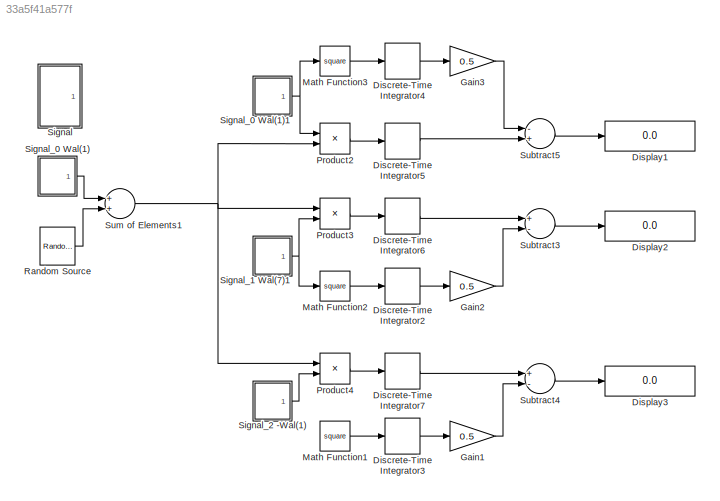
MODEL slx_33a5f41a577f
KIND model
CONFIG AbsTol = auto
CONFIG FixedStep = auto
CONFIG MaxStep = auto
CONFIG MinStep = auto
CONFIG RelTol = 1e-3
CONFIG SampleTimeConstraint = Unconstrained
CONFIG Solver = VariableStepAuto
CONFIG SolverMode = Auto
CONFIG SolverName = VariableStepAuto
CONFIG StartTime = 0.0
CONFIG StopTime = 10E-2
BLOCK [DiscreteIntegrator] Discrete-Time Integrator2
  ICPrevOutput = DiscIntNeverNeededParam
  ICPrevScaledInput = DiscIntNeverNeededParam
  InitialConditionSetting = State (most efficient)
  IntegratorMethod = Accumulation: Forward Euler
  Ports = [1, 1]
  SampleTime = T/N
BLOCK [DiscreteIntegrator] Discrete-Time Integrator3
  ICPrevOutput = DiscIntNeverNeededParam
  ICPrevScaledInput = DiscIntNeverNeededParam
  InitialConditionSetting = State (most efficient)
  IntegratorMethod = Accumulation: Forward Euler
  Ports = [1, 1]
  SampleTime = T/N
BLOCK [DiscreteIntegrator] Discrete-Time Integrator4
  ICPrevOutput = DiscIntNeverNeededParam
  ICPrevScaledInput = DiscIntNeverNeededParam
  InitialConditionSetting = State (most efficient)
  IntegratorMethod = Accumulation: Forward Euler
  Ports = [1, 1]
  SampleTime = T/N
BLOCK [DiscreteIntegrator] Discrete-Time Integrator5
  ICPrevOutput = DiscIntNeverNeededParam
  ICPrevScaledInput = DiscIntNeverNeededParam
  InitialConditionSetting = State (most efficient)
  IntegratorMethod = Accumulation: Forward Euler
  Ports = [1, 1]
  SampleTime = T/N
BLOCK [DiscreteIntegrator] Discrete-Time Integrator6
  ICPrevOutput = DiscIntNeverNeededParam
  ICPrevScaledInput = DiscIntNeverNeededParam
  InitialConditionSetting = State (most efficient)
  IntegratorMethod = Accumulation: Forward Euler
  Ports = [1, 1]
  SampleTime = T/N
BLOCK [DiscreteIntegrator] Discrete-Time Integrator7
  ICPrevOutput = DiscIntNeverNeededParam
  ICPrevScaledInput = DiscIntNeverNeededParam
  InitialConditionSetting = State (most efficient)
  IntegratorMethod = Accumulation: Forward Euler
  Ports = [1, 1]
  SampleTime = T/N
BLOCK [Display] Display1
  Decimation = 1
  Ports = [1]
BLOCK [Display] Display2
  Decimation = 1
  Ports = [1]
BLOCK [Display] Display3
  Decimation = 1
  Ports = [1]
BLOCK [Gain] Gain1
  Gain = 0.5
  OutDataTypeStr = Inherit: Inherit via internal rule
  ParamDataTypeStr = Inherit: Inherit via internal rule
  SaturateOnIntegerOverflow = off
BLOCK [Gain] Gain2
  Gain = 0.5
  OutDataTypeStr = Inherit: Inherit via internal rule
  ParamDataTypeStr = Inherit: Inherit via internal rule
  SaturateOnIntegerOverflow = off
BLOCK [Gain] Gain3
  Gain = 0.5
  OutDataTypeStr = Inherit: Inherit via internal rule
  ParamDataTypeStr = Inherit: Inherit via internal rule
  SaturateOnIntegerOverflow = off
BLOCK [Math] Math Function1
  Operator = square
  Ports = [1, 1]
BLOCK [Math] Math Function2
  Operator = square
  Ports = [1, 1]
BLOCK [Math] Math Function3
  Operator = square
  Ports = [1, 1]
BLOCK [Product] Product2
  InputSameDT = off
  OutDataTypeStr = Inherit: Inherit via internal rule
  Ports = [2, 1]
  RndMeth = Floor
  SaturateOnIntegerOverflow = off
BLOCK [Product] Product3
  InputSameDT = off
  OutDataTypeStr = Inherit: Inherit via internal rule
  Ports = [2, 1]
  RndMeth = Floor
  SaturateOnIntegerOverflow = off
BLOCK [Product] Product4
  InputSameDT = off
  OutDataTypeStr = Inherit: Inherit via internal rule
  Ports = [2, 1]
  RndMeth = Floor
  SaturateOnIntegerOverflow = off
BLOCK [Reference] Random Source  REF=dspsrcs4/Random
Source
  Ports = [0, 1]
  SourceBlock = dspsrcs4/Random\nSource
  SourceType = Random Source
  UserDataPersistent = on
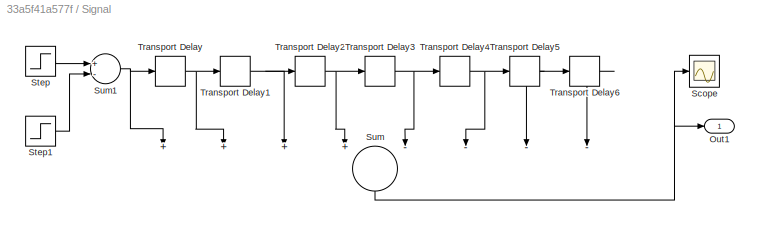
BLOCK [SubSystem] Signal 
  Ports = [0, 1]
  RequestExecContextInheritance = off
  Variant = off
BLOCK [Outport] Signal /Out1
  IconDisplay = Port number
BLOCK [Scope] Signal /Scope
  Ports = [1]
  ScopeSpecificationString = Simulink.scopes.TimeScopeBlockCfg('CurrentConfiguration', extmgr.ConfigurationSet(extmgr.Configuration('Core','General UI',true),extmgr.Configuration('Core','Source UI',true),extmgr.Configuration('Sources','WiredSimulink',true),extmgr.Configuration('Visuals','Time Domain',true,'SerializedDisplays',{struct('MinYLimReal','-0.00063','MaxYLimReal','0.00063','YLabelReal','','MinYLimMag','0.00000','MaxY...<+1363ch>
BLOCK [Step] Signal /Step
  After = A
  SampleTime = 0
  Time = 0
BLOCK [Step] Signal /Step1
  After = A
  SampleTime = 0
  Time = T
BLOCK [Sum] Signal /Sum
  InputSameDT = off
  Inputs = ++++----
  OutDataTypeStr = Inherit: Inherit via internal rule
  Ports = [8, 1]
  SaturateOnIntegerOverflow = off
BLOCK [Sum] Signal /Sum1
  InputSameDT = off
  Inputs = +-
  OutDataTypeStr = Inherit: Inherit via internal rule
  Ports = [2, 1]
  SaturateOnIntegerOverflow = off
BLOCK [TransportDelay] Signal /Transport Delay
  DelayTime = T
  Ports = [1, 1]
BLOCK [TransportDelay] Signal /Transport Delay1
  DelayTime = T
  Ports = [1, 1]
BLOCK [TransportDelay] Signal /Transport Delay2
  DelayTime = T
  Ports = [1, 1]
BLOCK [TransportDelay] Signal /Transport Delay3
  DelayTime = T
  Ports = [1, 1]
BLOCK [TransportDelay] Signal /Transport Delay4
  DelayTime = T
  Ports = [1, 1]
BLOCK [TransportDelay] Signal /Transport Delay5
  DelayTime = T
  Ports = [1, 1]
BLOCK [TransportDelay] Signal /Transport Delay6
  DelayTime = T
  Ports = [1, 1]
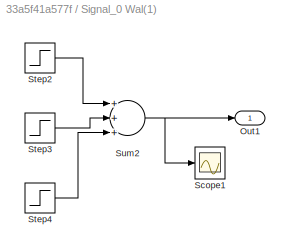
BLOCK [SubSystem] Signal_0 Wal(1)
  Ports = [0, 1]
  RequestExecContextInheritance = off
  Variant = off
BLOCK [Outport] Signal_0 Wal(1)/Out1
  IconDisplay = Port number
BLOCK [Scope] Signal_0 Wal(1)/Scope1
  Ports = [1]
  ScopeSpecificationString = Simulink.scopes.TimeScopeBlockCfg('CurrentConfiguration', extmgr.ConfigurationSet(extmgr.Configuration('Core','General UI',true),extmgr.Configuration('Core','Source UI',true),extmgr.Configuration('Sources','WiredSimulink',true,'DataLoggingVariableName','ScopeData1'),extmgr.Configuration('Visuals','Time Domain',true,'SerializedDisplays',{struct('MinYLimReal','-0.00063','MaxYLimReal','0.00063','YLab...<+1403ch>  <repeated x3 — deduplicated; at blocks: Scope1>
BLOCK [Step] Signal_0 Wal(1)/Step2
  After = A
  SampleTime = 0
  Time = 0
BLOCK [Step] Signal_0 Wal(1)/Step3
  After = -2*A
  SampleTime = 0
  Time = 4*T
BLOCK [Step] Signal_0 Wal(1)/Step4
  After = A
  SampleTime = 0
  Time = 8*T
BLOCK [Sum] Signal_0 Wal(1)/Sum2
  InputSameDT = off
  Inputs = +++
  OutDataTypeStr = Inherit: Inherit via internal rule
  Ports = [3, 1]
  SaturateOnIntegerOverflow = off
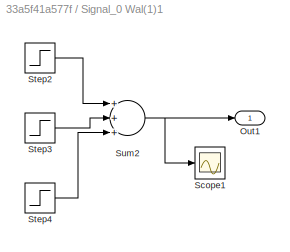
BLOCK [SubSystem] Signal_0 Wal(1)1
  Ports = [0, 1]
  RequestExecContextInheritance = off
  Variant = off
BLOCK [Outport] Signal_0 Wal(1)1/Out1
  IconDisplay = Port number
BLOCK [Scope] Signal_0 Wal(1)1/Scope1
  Ports = [1]
BLOCK [Step] Signal_0 Wal(1)1/Step2
  After = A
  SampleTime = 0
  Time = 0
BLOCK [Step] Signal_0 Wal(1)1/Step3
  After = -2*A
  SampleTime = 0
  Time = 4*T
BLOCK [Step] Signal_0 Wal(1)1/Step4
  After = A
  SampleTime = 0
  Time = 8*T
BLOCK [Sum] Signal_0 Wal(1)1/Sum2
  InputSameDT = off
  Inputs = +++
  OutDataTypeStr = Inherit: Inherit via internal rule
  Ports = [3, 1]
  SaturateOnIntegerOverflow = off
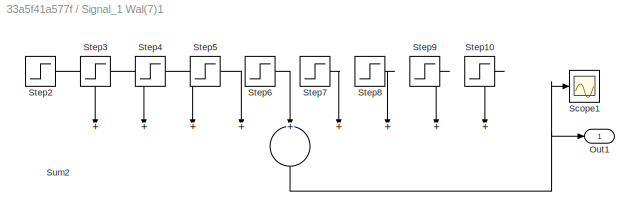
BLOCK [SubSystem] Signal_1 Wal(7)1
  Ports = [0, 1]
  RequestExecContextInheritance = off
  Variant = off
BLOCK [Outport] Signal_1 Wal(7)1/Out1
  IconDisplay = Port number
BLOCK [Scope] Signal_1 Wal(7)1/Scope1
  Ports = [1]
  ScopeSpecificationString = Simulink.scopes.TimeScopeBlockCfg('CurrentConfiguration', extmgr.ConfigurationSet(extmgr.Configuration('Core','General UI',true),extmgr.Configuration('Core','Source UI',true),extmgr.Configuration('Sources','WiredSimulink',true,'DataLoggingVariableName','ScopeData2'),extmgr.Configuration('Visuals','Time Domain',true,'SerializedDisplays',{struct('MinYLimReal','-0.00063','MaxYLimReal','0.00063','YLab...<+1403ch>
BLOCK [Step] Signal_1 Wal(7)1/Step10
  After = A
  SampleTime = 0
  Time = 8*T
BLOCK [Step] Signal_1 Wal(7)1/Step2
  After = A
  SampleTime = 0
  Time = 0
BLOCK [Step] Signal_1 Wal(7)1/Step3
  After = -2*A
  SampleTime = 0
  Time = T
BLOCK [Step] Signal_1 Wal(7)1/Step4
  After = 2*A
  SampleTime = 0
  Time = 2*T
BLOCK [Step] Signal_1 Wal(7)1/Step5
  After = -2*A
  SampleTime = 0
  Time = 3*T
BLOCK [Step] Signal_1 Wal(7)1/Step6
  After = 2*A
  SampleTime = 0
  Time = 4*T
BLOCK [Step] Signal_1 Wal(7)1/Step7
  After = -2*A
  SampleTime = 0
  Time = 5*T
BLOCK [Step] Signal_1 Wal(7)1/Step8
  After = 2*A
  SampleTime = 0
  Time = 6*T
BLOCK [Step] Signal_1 Wal(7)1/Step9
  After = -2*A
  SampleTime = 0
  Time = 7*T
BLOCK [Sum] Signal_1 Wal(7)1/Sum2
  InputSameDT = off
  Inputs = +++++++++
  OutDataTypeStr = Inherit: Inherit via internal rule
  Ports = [9, 1]
  SaturateOnIntegerOverflow = off
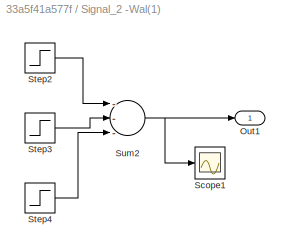
BLOCK [SubSystem] Signal_2 -Wal(1)
  Ports = [0, 1]
  RequestExecContextInheritance = off
  Variant = off
BLOCK [Outport] Signal_2 -Wal(1)/Out1
  IconDisplay = Port number
BLOCK [Scope] Signal_2 -Wal(1)/Scope1
  Ports = [1]
BLOCK [Step] Signal_2 -Wal(1)/Step2
  After = A
  SampleTime = 0
  Time = 0
BLOCK [Step] Signal_2 -Wal(1)/Step3
  After = -2*A
  SampleTime = 0
  Time = 4*T
BLOCK [Step] Signal_2 -Wal(1)/Step4
  After = A
  SampleTime = 0
  Time = 8*T
BLOCK [Sum] Signal_2 -Wal(1)/Sum2
  InputSameDT = off
  Inputs = ---
  OutDataTypeStr = Inherit: Inherit via internal rule
  Ports = [3, 1]
  SaturateOnIntegerOverflow = off
BLOCK [Sum] Subtract3
  InputSameDT = off
  Inputs = +-
  OutDataTypeStr = Inherit: Inherit via internal rule
  Ports = [2, 1]
  SaturateOnIntegerOverflow = off
BLOCK [Sum] Subtract4
  InputSameDT = off
  Inputs = +-
  OutDataTypeStr = Inherit: Inherit via internal rule
  Ports = [2, 1]
  SaturateOnIntegerOverflow = off
BLOCK [Sum] Subtract5
  InputSameDT = off
  Inputs = -+
  OutDataTypeStr = Inherit: Inherit via internal rule
  Ports = [2, 1]
  SaturateOnIntegerOverflow = off
BLOCK [Sum] Sum of Elements1
  InputSameDT = off
  OutDataTypeStr = Inherit: Inherit via internal rule
  Ports = [2, 1]
  SaturateOnIntegerOverflow = off
LINE Discrete-Time Integrator2:1 -> Gain2:1
LINE Discrete-Time Integrator3:1 -> Gain1:1
LINE Discrete-Time Integrator4:1 -> Gain3:1
LINE Discrete-Time Integrator5:1 -> Subtract5:2
LINE Discrete-Time Integrator6:1 -> Subtract3:1
LINE Discrete-Time Integrator7:1 -> Subtract4:1
LINE Gain1:1 -> Subtract4:2
LINE Gain2:1 -> Subtract3:2
LINE Gain3:1 -> Subtract5:1
LINE Math Function1:1 -> Discrete-Time Integrator3:1
LINE Math Function2:1 -> Discrete-Time Integrator2:1
LINE Math Function3:1 -> Discrete-Time Integrator4:1
LINE Product2:1 -> Discrete-Time Integrator5:1
LINE Product3:1 -> Discrete-Time Integrator6:1
LINE Product4:1 -> Discrete-Time Integrator7:1
LINE Random Source:1 -> Sum of Elements1:2
LINE Signal /Step1:1 -> Signal /Sum1:2
LINE Signal /Step:1 -> Signal /Sum1:1
NET Signal /Sum1:1 -> Signal /Sum:1, Signal /Transport Delay:1
NET Signal /Sum:1 -> Signal /Out1:1, Signal /Scope:1
NET Signal /Transport Delay1:1 -> Signal /Sum:3, Signal /Transport Delay2:1
NET Signal /Transport Delay2:1 -> Signal /Sum:4, Signal /Transport Delay3:1
NET Signal /Transport Delay3:1 -> Signal /Sum:5, Signal /Transport Delay4:1
NET Signal /Transport Delay4:1 -> Signal /Sum:6, Signal /Transport Delay5:1
NET Signal /Transport Delay5:1 -> Signal /Sum:7, Signal /Transport Delay6:1
LINE Signal /Transport Delay6:1 -> Signal /Sum:8
NET Signal /Transport Delay:1 -> Signal /Sum:2, Signal /Transport Delay1:1
LINE Signal_0 Wal(1)/Step2:1 -> Signal_0 Wal(1)/Sum2:1
LINE Signal_0 Wal(1)/Step3:1 -> Signal_0 Wal(1)/Sum2:2
LINE Signal_0 Wal(1)/Step4:1 -> Signal_0 Wal(1)/Sum2:3
NET Signal_0 Wal(1)/Sum2:1 -> Signal_0 Wal(1)/Out1:1, Signal_0 Wal(1)/Scope1:1
LINE Signal_0 Wal(1)1/Step2:1 -> Signal_0 Wal(1)1/Sum2:1
LINE Signal_0 Wal(1)1/Step3:1 -> Signal_0 Wal(1)1/Sum2:2
LINE Signal_0 Wal(1)1/Step4:1 -> Signal_0 Wal(1)1/Sum2:3
NET Signal_0 Wal(1)1/Sum2:1 -> Signal_0 Wal(1)1/Out1:1, Signal_0 Wal(1)1/Scope1:1
NET Signal_0 Wal(1)1:1 -> Math Function3:1, Product2:1
LINE Signal_0 Wal(1):1 -> Sum of Elements1:1
LINE Signal_1 Wal(7)1/Step10:1 -> Signal_1 Wal(7)1/Sum2:9
LINE Signal_1 Wal(7)1/Step2:1 -> Signal_1 Wal(7)1/Sum2:1
LINE Signal_1 Wal(7)1/Step3:1 -> Signal_1 Wal(7)1/Sum2:2
LINE Signal_1 Wal(7)1/Step4:1 -> Signal_1 Wal(7)1/Sum2:3
LINE Signal_1 Wal(7)1/Step5:1 -> Signal_1 Wal(7)1/Sum2:4
LINE Signal_1 Wal(7)1/Step6:1 -> Signal_1 Wal(7)1/Sum2:5
LINE Signal_1 Wal(7)1/Step7:1 -> Signal_1 Wal(7)1/Sum2:6
LINE Signal_1 Wal(7)1/Step8:1 -> Signal_1 Wal(7)1/Sum2:7
LINE Signal_1 Wal(7)1/Step9:1 -> Signal_1 Wal(7)1/Sum2:8
NET Signal_1 Wal(7)1/Sum2:1 -> Signal_1 Wal(7)1/Out1:1, Signal_1 Wal(7)1/Scope1:1
NET Signal_1 Wal(7)1:1 -> Math Function2:1, Product3:2
LINE Signal_2 -Wal(1)/Step2:1 -> Signal_2 -Wal(1)/Sum2:1
LINE Signal_2 -Wal(1)/Step3:1 -> Signal_2 -Wal(1)/Sum2:2
LINE Signal_2 -Wal(1)/Step4:1 -> Signal_2 -Wal(1)/Sum2:3
NET Signal_2 -Wal(1)/Sum2:1 -> Signal_2 -Wal(1)/Out1:1, Signal_2 -Wal(1)/Scope1:1
LINE Signal_2 -Wal(1):1 -> Product4:2
LINE Subtract3:1 -> Display2:1
LINE Subtract4:1 -> Display3:1
LINE Subtract5:1 -> Display1:1
NET Sum of Elements1:1 -> Product2:2, Product3:1, Product4:1
note: NET lines group one-source signal fan-out (src -> all destinations, sorted); 1:1 wires keep LINE
